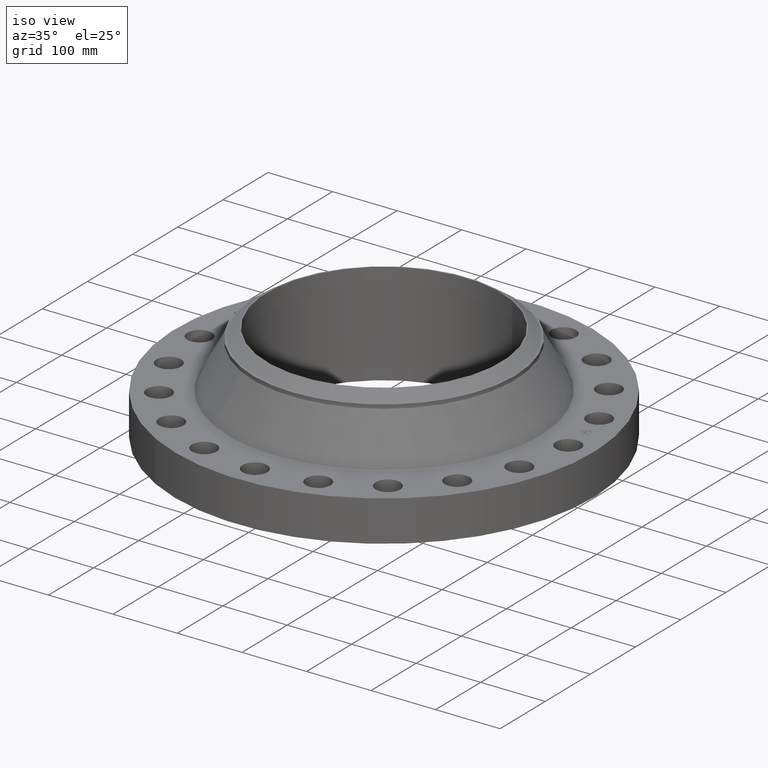
[diagram: clean part render]
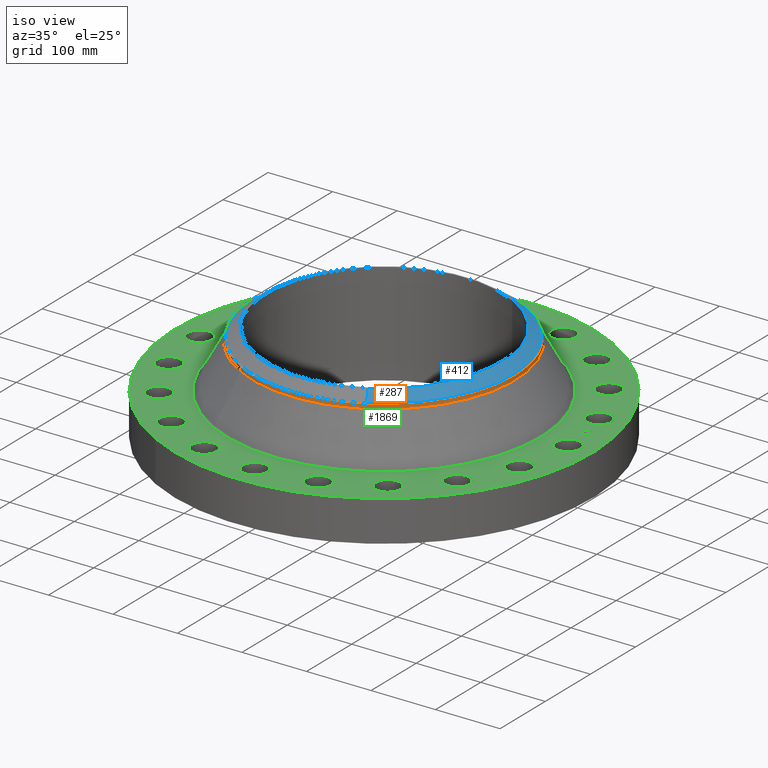
[diagram: same view with three faces highlighted in distinct colors, each labeled with its STEP entity id]
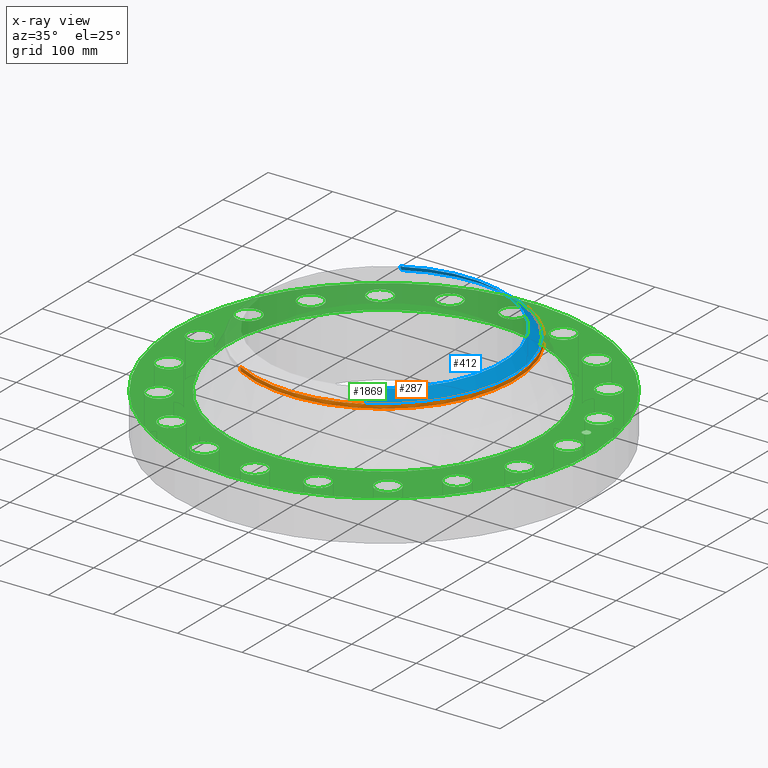
[diagram: x-ray of the same camera — body ghosted, the three highlighted faces saturated]
A machine part, iso view with three faces highlighted in distinct colors.
The next image is the same camera in x-ray (body ghosted, the three faces saturated) — at least one of them is partly hidden behind the body in this view.
Their STEP definitions:

[orange] entity #287 — the highlighted cylindrical surface (partial cylindrical patch) has radius 203.2 mm, axis along (0, 0, -1).
#220=AXIS2_PLACEMENT_3D('Circle Axis2P3D',#218,#219,$) ;
#252=AXIS2_PLACEMENT_3D('Cylinder Axis2P3D',#249,#250,#251) ;
#270=AXIS2_PLACEMENT_3D('Circle Axis2P3D',#268,#269,$) ;
#277=AXIS2_PLACEMENT_3D('Circle Axis2P3D',#275,#276,$) ;
#215=CARTESIAN_POINT('Vertex',(3.83540430885,7.02066049515,5.23329238413)) ;
#218=CARTESIAN_POINT('Axis2P3D Location',(0.,0.,5.23329238413)) ;
#222=CARTESIAN_POINT('Vertex',(-3.83540430885,-7.02066049515,5.23329238413)) ;
#249=CARTESIAN_POINT('Axis2P3D Location',(0.,0.,2.87500000001)) ;
#254=CARTESIAN_POINT('Line Origine',(-3.83540430885,-7.02066049515,5.35140262035)) ;
#258=CARTESIAN_POINT('Vertex',(-3.83540430885,-7.02066049515,5.46951285657)) ;
#261=CARTESIAN_POINT('Line Origine',(3.83540430885,7.02066049515,5.35140262035)) ;
#265=CARTESIAN_POINT('Vertex',(3.83540430885,7.02066049515,5.46951285657)) ;
#268=CARTESIAN_POINT('Axis2P3D Location',(0.,0.,5.46951285657)) ;
#272=CARTESIAN_POINT('Vertex',(3.83540430885,-7.02066049515,5.46951285657)) ;
#275=CARTESIAN_POINT('Axis2P3D Location',(0.,0.,5.46951285657)) ;
#219=DIRECTION('Axis2P3D Direction',(0.,0.,-0.0393700787402)) ;
#250=DIRECTION('Axis2P3D Direction',(0.,0.,-0.0393700787402)) ;
#251=DIRECTION('Axis2P3D XDirection',(-0.0188750212049,-0.0345504945626,0.)) ;
#255=DIRECTION('Vector Direction',(0.,0.,-0.0393700787402)) ;
#262=DIRECTION('Vector Direction',(0.,0.,-0.0393700787402)) ;
#269=DIRECTION('Axis2P3D Direction',(0.,0.,-0.0393700787402)) ;
#276=DIRECTION('Axis2P3D Direction',(0.,0.,-0.0393700787402)) ;
#256=VECTOR('Line Direction',#255,0.0393700787402) ;
#263=VECTOR('Line Direction',#262,0.0393700787402) ;
#281=ORIENTED_EDGE('',*,*,#260,.F.) ;
#282=ORIENTED_EDGE('',*,*,#224,.F.) ;
#283=ORIENTED_EDGE('',*,*,#267,.T.) ;
#284=ORIENTED_EDGE('',*,*,#274,.F.) ;
#285=ORIENTED_EDGE('',*,*,#279,.T.) ;
#287=ADVANCED_FACE('PartBody',(#286),#253,.T.) ;
#221=CIRCLE('generated circle',#220,8.00000000003) ;
#271=CIRCLE('generated circle',#270,8.00000000003) ;
#278=CIRCLE('generated circle',#277,8.00000000003) ;
#253=CYLINDRICAL_SURFACE('generated cylinder',#252,8.00000000003) ;
#224=EDGE_CURVE('',#216,#223,#221,.T.) ;
#260=EDGE_CURVE('',#223,#259,#257,.F.) ;
#267=EDGE_CURVE('',#216,#266,#264,.F.) ;
#274=EDGE_CURVE('',#273,#266,#271,.F.) ;
#279=EDGE_CURVE('',#273,#259,#278,.T.) ;
#280=EDGE_LOOP('',(#281,#282,#283,#284,#285)) ;
#286=FACE_OUTER_BOUND('',#280,.T.) ;
#257=LINE('Line',#254,#256) ;
#264=LINE('Line',#261,#263) ;
#216=VERTEX_POINT('',#215) ;
#223=VERTEX_POINT('',#222) ;
#259=VERTEX_POINT('',#258) ;
#266=VERTEX_POINT('',#265) ;
#273=VERTEX_POINT('',#272) ;

[blue] entity #412 — the highlighted conical surface has half-angle 52.5 deg.
#347=AXIS2_PLACEMENT_3D('Circle Axis2P3D',#345,#346,$) ;
#385=AXIS2_PLACEMENT_3D('Cone Axis2P3D',#382,#383,#384) ;
#396=AXIS2_PLACEMENT_3D('Circle Axis2P3D',#394,#395,$) ;
#345=CARTESIAN_POINT('Axis2P3D Location',(0.,0.,6.00000000002)) ;
#349=CARTESIAN_POINT('Vertex',(3.46851919668,-6.34908180204,6.00000000002)) ;
#351=CARTESIAN_POINT('Vertex',(-3.46851919668,6.34908180204,6.00000000002)) ;
#382=CARTESIAN_POINT('Axis2P3D Location',(0.,0.,6.00000000002)) ;
#387=CARTESIAN_POINT('Line Origine',(3.62346049923,-6.63269995394,5.75201437259)) ;
#391=CARTESIAN_POINT('Vertex',(3.77840180178,-6.91631810585,5.50402874515)) ;
#394=CARTESIAN_POINT('Axis2P3D Location',(0.,0.,5.50402874515)) ;
#398=CARTESIAN_POINT('Vertex',(-3.77840180178,6.91631810585,5.50402874515)) ;
#401=CARTESIAN_POINT('Line Origine',(-3.62346049923,6.63269995394,5.75201437259)) ;
#346=DIRECTION('Axis2P3D Direction',(0.,0.,-0.0393700787402)) ;
#383=DIRECTION('Axis2P3D Direction',(-0.,-0.,-0.0393700787402)) ;
#384=DIRECTION('Axis2P3D XDirection',(0.0188750212049,-0.0345504945626,0.)) ;
#388=DIRECTION('Vector Direction',(0.014974561121,-0.02741075027,-0.023966985394)) ;
#395=DIRECTION('Axis2P3D Direction',(0.,0.,-0.0393700787402)) ;
#402=DIRECTION('Vector Direction',(-0.014974561121,0.02741075027,-0.023966985394)) ;
#389=VECTOR('Line Direction',#388,0.0393700787402) ;
#403=VECTOR('Line Direction',#402,0.0393700787402) ;
#407=ORIENTED_EDGE('',*,*,#353,.F.) ;
#408=ORIENTED_EDGE('',*,*,#393,.T.) ;
#409=ORIENTED_EDGE('',*,*,#400,.T.) ;
#410=ORIENTED_EDGE('',*,*,#405,.F.) ;
#412=ADVANCED_FACE('PartBody',(#411),#386,.T.) ;
#348=CIRCLE('generated circle',#347,7.23474015751) ;
#397=CIRCLE('generated circle',#396,7.88110248106) ;
#386=CONICAL_SURFACE('Cone',#385,7.23474015751,0.916297857297) ;
#353=EDGE_CURVE('',#350,#352,#348,.F.) ;
#393=EDGE_CURVE('',#350,#392,#390,.T.) ;
#400=EDGE_CURVE('',#392,#399,#397,.F.) ;
#405=EDGE_CURVE('',#352,#399,#404,.T.) ;
#406=EDGE_LOOP('',(#407,#408,#409,#410)) ;
#411=FACE_OUTER_BOUND('',#406,.T.) ;
#390=LINE('Line',#387,#389) ;
#404=LINE('Line',#401,#403) ;
#350=VERTEX_POINT('',#349) ;
#352=VERTEX_POINT('',#351) ;
#392=VERTEX_POINT('',#391) ;
#399=VERTEX_POINT('',#398) ;

[green] entity #1869 — the highlighted planar face has unit normal (0, 0, -1).
#65=AXIS2_PLACEMENT_3D('Circle Axis2P3D',#63,#64,$) ;
#82=AXIS2_PLACEMENT_3D('Circle Axis2P3D',#80,#81,$) ;
#115=AXIS2_PLACEMENT_3D('Circle Axis2P3D',#113,#114,$) ;
#139=AXIS2_PLACEMENT_3D('Circle Axis2P3D',#137,#138,$) ;
#156=AXIS2_PLACEMENT_3D('Circle Axis2P3D',#154,#155,$) ;
#191=AXIS2_PLACEMENT_3D('Circle Axis2P3D',#189,#190,$) ;
#962=AXIS2_PLACEMENT_3D('Circle Axis2P3D',#960,#961,$) ;
#974=AXIS2_PLACEMENT_3D('Circle Axis2P3D',#972,#973,$) ;
#1005=AXIS2_PLACEMENT_3D('Circle Axis2P3D',#1003,#1004,$) ;
#1017=AXIS2_PLACEMENT_3D('Circle Axis2P3D',#1015,#1016,$) ;
#1048=AXIS2_PLACEMENT_3D('Circle Axis2P3D',#1046,#1047,$) ;
#1060=AXIS2_PLACEMENT_3D('Circle Axis2P3D',#1058,#1059,$) ;
#1091=AXIS2_PLACEMENT_3D('Circle Axis2P3D',#1089,#1090,$) ;
#1103=AXIS2_PLACEMENT_3D('Circle Axis2P3D',#1101,#1102,$) ;
#1134=AXIS2_PLACEMENT_3D('Circle Axis2P3D',#1132,#1133,$) ;
#1146=AXIS2_PLACEMENT_3D('Circle Axis2P3D',#1144,#1145,$) ;
#1177=AXIS2_PLACEMENT_3D('Circle Axis2P3D',#1175,#1176,$) ;
#1189=AXIS2_PLACEMENT_3D('Circle Axis2P3D',#1187,#1188,$) ;
#1220=AXIS2_PLACEMENT_3D('Circle Axis2P3D',#1218,#1219,$) ;
#1232=AXIS2_PLACEMENT_3D('Circle Axis2P3D',#1230,#1231,$) ;
#1263=AXIS2_PLACEMENT_3D('Circle Axis2P3D',#1261,#1262,$) ;
#1275=AXIS2_PLACEMENT_3D('Circle Axis2P3D',#1273,#1274,$) ;
#1306=AXIS2_PLACEMENT_3D('Circle Axis2P3D',#1304,#1305,$) ;
#1318=AXIS2_PLACEMENT_3D('Circle Axis2P3D',#1316,#1317,$) ;
#1349=AXIS2_PLACEMENT_3D('Circle Axis2P3D',#1347,#1348,$) ;
#1361=AXIS2_PLACEMENT_3D('Circle Axis2P3D',#1359,#1360,$) ;
#1392=AXIS2_PLACEMENT_3D('Circle Axis2P3D',#1390,#1391,$) ;
#1404=AXIS2_PLACEMENT_3D('Circle Axis2P3D',#1402,#1403,$) ;
#1435=AXIS2_PLACEMENT_3D('Circle Axis2P3D',#1433,#1434,$) ;
#1447=AXIS2_PLACEMENT_3D('Circle Axis2P3D',#1445,#1446,$) ;
#1478=AXIS2_PLACEMENT_3D('Circle Axis2P3D',#1476,#1477,$) ;
#1490=AXIS2_PLACEMENT_3D('Circle Axis2P3D',#1488,#1489,$) ;
#1521=AXIS2_PLACEMENT_3D('Circle Axis2P3D',#1519,#1520,$) ;
#1533=AXIS2_PLACEMENT_3D('Circle Axis2P3D',#1531,#1532,$) ;
#1564=AXIS2_PLACEMENT_3D('Circle Axis2P3D',#1562,#1563,$) ;
#1576=AXIS2_PLACEMENT_3D('Circle Axis2P3D',#1574,#1575,$) ;
#1607=AXIS2_PLACEMENT_3D('Circle Axis2P3D',#1605,#1606,$) ;
#1619=AXIS2_PLACEMENT_3D('Circle Axis2P3D',#1617,#1618,$) ;
#1650=AXIS2_PLACEMENT_3D('Circle Axis2P3D',#1648,#1649,$) ;
#1662=AXIS2_PLACEMENT_3D('Circle Axis2P3D',#1660,#1661,$) ;
#1693=AXIS2_PLACEMENT_3D('Circle Axis2P3D',#1691,#1692,$) ;
#1705=AXIS2_PLACEMENT_3D('Circle Axis2P3D',#1703,#1704,$) ;
#1736=AXIS2_PLACEMENT_3D('Circle Axis2P3D',#1734,#1735,$) ;
#1748=AXIS2_PLACEMENT_3D('Circle Axis2P3D',#1746,#1747,$) ;
#1761=AXIS2_PLACEMENT_3D('Plane Axis2P3D',#1758,#1759,#1760) ;
#1853=AXIS2_PLACEMENT_3D('Circle Axis2P3D',#1851,#1852,$) ;
#1862=AXIS2_PLACEMENT_3D('Circle Axis2P3D',#1860,#1861,$) ;
#46=CARTESIAN_POINT('Vertex',(10.5918130786,0.359569153955,2.50000000001)) ;
#60=CARTESIAN_POINT('Vertex',(11.9081869215,-0.359569153955,2.50000000001)) ;
#63=CARTESIAN_POINT('Axis2P3D Location',(11.25,0.,2.50000000001)) ;
#80=CARTESIAN_POINT('Axis2P3D Location',(11.25,0.,2.50000000001)) ;
#110=CARTESIAN_POINT('Vertex',(-6.11267561723,-11.1891776641,2.50000000001)) ;
#113=CARTESIAN_POINT('Axis2P3D Location',(0.,0.,2.50000000001)) ;
#117=CARTESIAN_POINT('Vertex',(6.11267561723,11.1891776641,2.50000000001)) ;
#137=CARTESIAN_POINT('Axis2P3D Location',(0.,0.,2.50000000001)) ;
#154=CARTESIAN_POINT('Axis2P3D Location',(0.,0.,2.50000000001)) ;
#158=CARTESIAN_POINT('Vertex',(4.58859521144,8.39936719445,2.50000000001)) ;
#160=CARTESIAN_POINT('Vertex',(-4.58859521144,-8.39936719445,2.50000000001)) ;
#189=CARTESIAN_POINT('Axis2P3D Location',(0.,0.,2.50000000001)) ;
#950=CARTESIAN_POINT('Vertex',(-10.184525827,2.93107965561,2.50000000001)) ;
#957=CARTESIAN_POINT('Vertex',(-11.2142457897,4.02180271785,2.50000000001)) ;
#960=CARTESIAN_POINT('Axis2P3D Location',(-10.6993858084,3.47644118673,2.50000000001)) ;
#972=CARTESIAN_POINT('Axis2P3D Location',(-10.6993858084,3.47644118673,2.50000000001)) ;
#993=CARTESIAN_POINT('Vertex',(8.78030622772,-5.93481396645,2.50000000001)) ;
#1000=CARTESIAN_POINT('Vertex',(9.42257614579,-7.29035421018,2.50000000001)) ;
#1003=CARTESIAN_POINT('Axis2P3D Location',(9.10144118675,-6.61258408832,2.50000000001)) ;
#1015=CARTESIAN_POINT('Axis2P3D Location',(9.10144118675,-6.61258408832,2.50000000001)) ;
#1036=CARTESIAN_POINT('Vertex',(-8.78030622772,5.93481396645,2.50000000001)) ;
#1043=CARTESIAN_POINT('Vertex',(-9.42257614579,7.29035421018,2.50000000001)) ;
#1046=CARTESIAN_POINT('Axis2P3D Location',(-9.10144118675,6.61258408832,2.50000000001)) ;
#1058=CARTESIAN_POINT('Axis2P3D Location',(-9.10144118675,6.61258408832,2.50000000001)) ;
#1079=CARTESIAN_POINT('Vertex',(6.51660907886,-8.35760733598,2.50000000001)) ;
#1086=CARTESIAN_POINT('Vertex',(6.70855909778,-9.84527503753,2.50000000001)) ;
#1089=CARTESIAN_POINT('Axis2P3D Location',(6.61258408832,-9.10144118675,2.50000000001)) ;
#1101=CARTESIAN_POINT('Axis2P3D Location',(6.61258408832,-9.10144118675,2.50000000001)) ;
#1122=CARTESIAN_POINT('Vertex',(-6.51660907886,8.35760733598,2.50000000001)) ;
#1129=CARTESIAN_POINT('Vertex',(-6.70855909778,9.84527503753,2.50000000001)) ;
#1132=CARTESIAN_POINT('Axis2P3D Location',(-6.61258408832,9.10144118675,2.50000000001)) ;
#1144=CARTESIAN_POINT('Axis2P3D Location',(-6.61258408832,9.10144118675,2.50000000001)) ;
#1165=CARTESIAN_POINT('Vertex',(3.61502082947,-9.96229986858,2.50000000001)) ;
#1172=CARTESIAN_POINT('Vertex',(3.337861544,-11.4364717481,2.50000000001)) ;
#1175=CARTESIAN_POINT('Axis2P3D Location',(3.47644118673,-10.6993858084,2.50000000001)) ;
#1187=CARTESIAN_POINT('Axis2P3D Location',(3.47644118673,-10.6993858084,2.50000000001)) ;
#1208=CARTESIAN_POINT('Vertex',(-3.61502082947,9.96229986858,2.50000000001)) ;
#1215=CARTESIAN_POINT('Vertex',(-3.337861544,11.4364717481,2.50000000001)) ;
#1218=CARTESIAN_POINT('Axis2P3D Location',(-3.47644118673,10.6993858084,2.50000000001)) ;
#1230=CARTESIAN_POINT('Axis2P3D Location',(-3.47644118673,10.6993858084,2.50000000001)) ;
#1251=CARTESIAN_POINT('Vertex',(0.359569153955,-10.5918130786,2.50000000001)) ;
#1258=CARTESIAN_POINT('Vertex',(-0.359569153955,-11.9081869215,2.50000000001)) ;
#1261=CARTESIAN_POINT('Axis2P3D Location',(9.4893575353E-016,-11.25,2.50000000001)) ;
#1273=CARTESIAN_POINT('Axis2P3D Location',(9.4893575353E-016,-11.25,2.50000000001)) ;
#1294=CARTESIAN_POINT('Vertex',(-0.359569153955,10.5918130786,2.50000000001)) ;
#1301=CARTESIAN_POINT('Vertex',(0.359569153955,11.9081869215,2.50000000001)) ;
#1304=CARTESIAN_POINT('Axis2P3D Location',(-9.82066881883E-015,11.25,2.50000000001)) ;
#1316=CARTESIAN_POINT('Axis2P3D Location',(-9.82066881883E-015,11.25,2.50000000001)) ;
#1337=CARTESIAN_POINT('Vertex',(-2.93107965561,-10.184525827,2.50000000001)) ;
#1344=CARTESIAN_POINT('Vertex',(-4.02180271785,-11.2142457897,2.50000000001)) ;
#1347=CARTESIAN_POINT('Axis2P3D Location',(-3.47644118673,-10.6993858084,2.50000000001)) ;
#1359=CARTESIAN_POINT('Axis2P3D Location',(-3.47644118673,-10.6993858084,2.50000000001)) ;
#1380=CARTESIAN_POINT('Vertex',(2.93107965561,10.184525827,2.50000000001)) ;
#1387=CARTESIAN_POINT('Vertex',(4.02180271785,11.2142457897,2.50000000001)) ;
#1390=CARTESIAN_POINT('Axis2P3D Location',(3.47644118673,10.6993858084,2.50000000001)) ;
#1402=CARTESIAN_POINT('Axis2P3D Location',(3.47644118673,10.6993858084,2.50000000001)) ;
#1423=CARTESIAN_POINT('Vertex',(-5.93481396645,-8.78030622772,2.50000000001)) ;
#1430=CARTESIAN_POINT('Vertex',(-7.29035421018,-9.42257614579,2.50000000001)) ;
#1433=CARTESIAN_POINT('Axis2P3D Location',(-6.61258408832,-9.10144118675,2.50000000001)) ;
#1445=CARTESIAN_POINT('Axis2P3D Location',(-6.61258408832,-9.10144118675,2.50000000001)) ;
#1466=CARTESIAN_POINT('Vertex',(5.93481396645,8.78030622772,2.50000000001)) ;
#1473=CARTESIAN_POINT('Vertex',(7.29035421018,9.42257614579,2.50000000001)) ;
#1476=CARTESIAN_POINT('Axis2P3D Location',(6.61258408832,9.10144118675,2.50000000001)) ;
#1488=CARTESIAN_POINT('Axis2P3D Location',(6.61258408832,9.10144118675,2.50000000001)) ;
#1509=CARTESIAN_POINT('Vertex',(-8.35760733598,-6.51660907886,2.50000000001)) ;
#1516=CARTESIAN_POINT('Vertex',(-9.84527503753,-6.70855909778,2.50000000001)) ;
#1519=CARTESIAN_POINT('Axis2P3D Location',(-9.10144118675,-6.61258408832,2.50000000001)) ;
#1531=CARTESIAN_POINT('Axis2P3D Location',(-9.10144118675,-6.61258408832,2.50000000001)) ;
#1552=CARTESIAN_POINT('Vertex',(8.35760733598,6.51660907886,2.50000000001)) ;
#1559=CARTESIAN_POINT('Vertex',(9.84527503753,6.70855909778,2.50000000001)) ;
#1562=CARTESIAN_POINT('Axis2P3D Location',(9.10144118675,6.61258408832,2.50000000001)) ;
#1574=CARTESIAN_POINT('Axis2P3D Location',(9.10144118675,6.61258408832,2.50000000001)) ;
#1595=CARTESIAN_POINT('Vertex',(-9.96229986858,-3.61502082947,2.50000000001)) ;
#1602=CARTESIAN_POINT('Vertex',(-11.4364717481,-3.337861544,2.50000000001)) ;
#1605=CARTESIAN_POINT('Axis2P3D Location',(-10.6993858084,-3.47644118673,2.50000000001)) ;
#1617=CARTESIAN_POINT('Axis2P3D Location',(-10.6993858084,-3.47644118673,2.50000000001)) ;
#1638=CARTESIAN_POINT('Vertex',(9.96229986858,3.61502082947,2.50000000001)) ;
#1645=CARTESIAN_POINT('Vertex',(11.4364717481,3.337861544,2.50000000001)) ;
#1648=CARTESIAN_POINT('Axis2P3D Location',(10.6993858084,3.47644118673,2.50000000001)) ;
#1660=CARTESIAN_POINT('Axis2P3D Location',(10.6993858084,3.47644118673,2.50000000001)) ;
#1681=CARTESIAN_POINT('Vertex',(-10.5918130786,-0.359569153955,2.50000000001)) ;
#1688=CARTESIAN_POINT('Vertex',(-11.9081869215,0.359569153955,2.50000000001)) ;
#1691=CARTESIAN_POINT('Axis2P3D Location',(-11.25,-6.37373125988E-015,2.50000000001)) ;
#1703=CARTESIAN_POINT('Axis2P3D Location',(-11.25,-6.37373125988E-015,2.50000000001)) ;
#1724=CARTESIAN_POINT('Vertex',(10.184525827,-2.93107965561,2.50000000001)) ;
#1731=CARTESIAN_POINT('Vertex',(11.2142457897,-4.02180271785,2.50000000001)) ;
#1734=CARTESIAN_POINT('Axis2P3D Location',(10.6993858084,-3.47644118673,2.50000000001)) ;
#1746=CARTESIAN_POINT('Axis2P3D Location',(10.6993858084,-3.47644118673,2.50000000001)) ;
#1758=CARTESIAN_POINT('Axis2P3D Location',(0.,12.7500000001,2.50000000001)) ;
#1851=CARTESIAN_POINT('Axis2P3D Location',(11.1114938317,1.75988773171,2.50000000001)) ;
#1855=CARTESIAN_POINT('Vertex',(11.0727763016,2.00434059601,2.50000000001)) ;
#1857=CARTESIAN_POINT('Vertex',(11.1502113618,1.51543486741,2.50000000001)) ;
#1860=CARTESIAN_POINT('Axis2P3D Location',(11.1114938317,1.75988773171,2.50000000001)) ;
#64=DIRECTION('Axis2P3D Direction',(0.,-0.,-0.0393700787402)) ;
#81=DIRECTION('Axis2P3D Direction',(0.,-0.,-0.0393700787402)) ;
#114=DIRECTION('Axis2P3D Direction',(0.,0.,-0.0393700787402)) ;
#138=DIRECTION('Axis2P3D Direction',(0.,0.,-0.0393700787402)) ;
#155=DIRECTION('Axis2P3D Direction',(0.,0.,-0.0393700787402)) ;
#190=DIRECTION('Axis2P3D Direction',(0.,0.,-0.0393700787402)) ;
#961=DIRECTION('Axis2P3D Direction',(0.,0.,-0.0393700787402)) ;
#973=DIRECTION('Axis2P3D Direction',(0.,0.,-0.0393700787402)) ;
#1004=DIRECTION('Axis2P3D Direction',(0.,-0.,-0.0393700787402)) ;
#1016=DIRECTION('Axis2P3D Direction',(0.,-0.,-0.0393700787402)) ;
#1047=DIRECTION('Axis2P3D Direction',(0.,0.,-0.0393700787402)) ;
#1059=DIRECTION('Axis2P3D Direction',(0.,0.,-0.0393700787402)) ;
#1090=DIRECTION('Axis2P3D Direction',(0.,-0.,-0.0393700787402)) ;
#1102=DIRECTION('Axis2P3D Direction',(0.,-0.,-0.0393700787402)) ;
#1133=DIRECTION('Axis2P3D Direction',(0.,0.,-0.0393700787402)) ;
#1145=DIRECTION('Axis2P3D Direction',(0.,0.,-0.0393700787402)) ;
#1176=DIRECTION('Axis2P3D Direction',(0.,-0.,-0.0393700787402)) ;
#1188=DIRECTION('Axis2P3D Direction',(0.,-0.,-0.0393700787402)) ;
#1219=DIRECTION('Axis2P3D Direction',(0.,0.,-0.0393700787402)) ;
#1231=DIRECTION('Axis2P3D Direction',(0.,0.,-0.0393700787402)) ;
#1262=DIRECTION('Axis2P3D Direction',(0.,-0.,-0.0393700787402)) ;
#1274=DIRECTION('Axis2P3D Direction',(0.,-0.,-0.0393700787402)) ;
#1305=DIRECTION('Axis2P3D Direction',(0.,0.,-0.0393700787402)) ;
#1317=DIRECTION('Axis2P3D Direction',(0.,0.,-0.0393700787402)) ;
#1348=DIRECTION('Axis2P3D Direction',(-0.,0.,-0.0393700787402)) ;
#1360=DIRECTION('Axis2P3D Direction',(-0.,0.,-0.0393700787402)) ;
#1391=DIRECTION('Axis2P3D Direction',(0.,0.,-0.0393700787402)) ;
#1403=DIRECTION('Axis2P3D Direction',(0.,0.,-0.0393700787402)) ;
#1434=DIRECTION('Axis2P3D Direction',(-0.,0.,-0.0393700787402)) ;
#1446=DIRECTION('Axis2P3D Direction',(-0.,0.,-0.0393700787402)) ;
#1477=DIRECTION('Axis2P3D Direction',(0.,0.,-0.0393700787402)) ;
#1489=DIRECTION('Axis2P3D Direction',(0.,0.,-0.0393700787402)) ;
#1520=DIRECTION('Axis2P3D Direction',(-0.,0.,-0.0393700787402)) ;
#1532=DIRECTION('Axis2P3D Direction',(-0.,0.,-0.0393700787402)) ;
#1563=DIRECTION('Axis2P3D Direction',(0.,0.,-0.0393700787402)) ;
#1575=DIRECTION('Axis2P3D Direction',(0.,0.,-0.0393700787402)) ;
#1606=DIRECTION('Axis2P3D Direction',(-0.,0.,-0.0393700787402)) ;
#1618=DIRECTION('Axis2P3D Direction',(-0.,0.,-0.0393700787402)) ;
#1649=DIRECTION('Axis2P3D Direction',(0.,0.,-0.0393700787402)) ;
#1661=DIRECTION('Axis2P3D Direction',(0.,0.,-0.0393700787402)) ;
#1692=DIRECTION('Axis2P3D Direction',(-0.,0.,-0.0393700787402)) ;
#1704=DIRECTION('Axis2P3D Direction',(-0.,0.,-0.0393700787402)) ;
#1735=DIRECTION('Axis2P3D Direction',(0.,-0.,-0.0393700787402)) ;
#1747=DIRECTION('Axis2P3D Direction',(0.,-0.,-0.0393700787402)) ;
#1759=DIRECTION('Axis2P3D Direction',(0.,0.,-0.0393700787402)) ;
#1760=DIRECTION('Axis2P3D XDirection',(0.0393700787402,0.,0.)) ;
#1852=DIRECTION('Axis2P3D Direction',(0.,0.,-0.0393700787402)) ;
#1861=DIRECTION('Axis2P3D Direction',(0.,0.,-0.0393700787402)) ;
#1764=ORIENTED_EDGE('',*,*,#141,.F.) ;
#1765=ORIENTED_EDGE('',*,*,#119,.F.) ;
#1768=ORIENTED_EDGE('',*,*,#67,.T.) ;
#1769=ORIENTED_EDGE('',*,*,#84,.T.) ;
#1772=ORIENTED_EDGE('',*,*,#193,.T.) ;
#1773=ORIENTED_EDGE('',*,*,#162,.T.) ;
#1776=ORIENTED_EDGE('',*,*,#1750,.T.) ;
#1777=ORIENTED_EDGE('',*,*,#1738,.T.) ;
#1780=ORIENTED_EDGE('',*,*,#1019,.T.) ;
#1781=ORIENTED_EDGE('',*,*,#1007,.T.) ;
#1784=ORIENTED_EDGE('',*,*,#1105,.T.) ;
#1785=ORIENTED_EDGE('',*,*,#1093,.T.) ;
#1788=ORIENTED_EDGE('',*,*,#1191,.T.) ;
#1789=ORIENTED_EDGE('',*,*,#1179,.T.) ;
#1792=ORIENTED_EDGE('',*,*,#1277,.T.) ;
#1793=ORIENTED_EDGE('',*,*,#1265,.T.) ;
#1796=ORIENTED_EDGE('',*,*,#1363,.T.) ;
#1797=ORIENTED_EDGE('',*,*,#1351,.T.) ;
#1800=ORIENTED_EDGE('',*,*,#1449,.T.) ;
#1801=ORIENTED_EDGE('',*,*,#1437,.T.) ;
#1804=ORIENTED_EDGE('',*,*,#1535,.T.) ;
#1805=ORIENTED_EDGE('',*,*,#1523,.T.) ;
#1808=ORIENTED_EDGE('',*,*,#1621,.T.) ;
#1809=ORIENTED_EDGE('',*,*,#1609,.T.) ;
#1812=ORIENTED_EDGE('',*,*,#1707,.T.) ;
#1813=ORIENTED_EDGE('',*,*,#1695,.T.) ;
#1816=ORIENTED_EDGE('',*,*,#976,.T.) ;
#1817=ORIENTED_EDGE('',*,*,#964,.T.) ;
#1820=ORIENTED_EDGE('',*,*,#1062,.T.) ;
#1821=ORIENTED_EDGE('',*,*,#1050,.T.) ;
#1824=ORIENTED_EDGE('',*,*,#1148,.T.) ;
#1825=ORIENTED_EDGE('',*,*,#1136,.T.) ;
#1828=ORIENTED_EDGE('',*,*,#1234,.T.) ;
#1829=ORIENTED_EDGE('',*,*,#1222,.T.) ;
#1832=ORIENTED_EDGE('',*,*,#1320,.T.) ;
#1833=ORIENTED_EDGE('',*,*,#1308,.T.) ;
#1836=ORIENTED_EDGE('',*,*,#1406,.T.) ;
#1837=ORIENTED_EDGE('',*,*,#1394,.T.) ;
#1840=ORIENTED_EDGE('',*,*,#1492,.T.) ;
#1841=ORIENTED_EDGE('',*,*,#1480,.T.) ;
#1844=ORIENTED_EDGE('',*,*,#1578,.T.) ;
#1845=ORIENTED_EDGE('',*,*,#1566,.T.) ;
#1848=ORIENTED_EDGE('',*,*,#1664,.T.) ;
#1849=ORIENTED_EDGE('',*,*,#1652,.T.) ;
#1866=ORIENTED_EDGE('',*,*,#1859,.T.) ;
#1867=ORIENTED_EDGE('',*,*,#1864,.T.) ;
#1770=FACE_BOUND('',#1767,.T.) ;
#1774=FACE_BOUND('',#1771,.T.) ;
#1778=FACE_BOUND('',#1775,.T.) ;
#1782=FACE_BOUND('',#1779,.T.) ;
#1786=FACE_BOUND('',#1783,.T.) ;
#1790=FACE_BOUND('',#1787,.T.) ;
#1794=FACE_BOUND('',#1791,.T.) ;
#1798=FACE_BOUND('',#1795,.T.) ;
#1802=FACE_BOUND('',#1799,.T.) ;
#1806=FACE_BOUND('',#1803,.T.) ;
#1810=FACE_BOUND('',#1807,.T.) ;
#1814=FACE_BOUND('',#1811,.T.) ;
#1818=FACE_BOUND('',#1815,.T.) ;
#1822=FACE_BOUND('',#1819,.T.) ;
#1826=FACE_BOUND('',#1823,.T.) ;
#1830=FACE_BOUND('',#1827,.T.) ;
#1834=FACE_BOUND('',#1831,.T.) ;
#1838=FACE_BOUND('',#1835,.T.) ;
#1842=FACE_BOUND('',#1839,.T.) ;
#1846=FACE_BOUND('',#1843,.T.) ;
#1850=FACE_BOUND('',#1847,.T.) ;
#1868=FACE_BOUND('',#1865,.T.) ;
#1869=ADVANCED_FACE('PartBody',(#1766,#1770,#1774,#1778,#1782,#1786,#1790,#1794,#1798,#1802,#1806,#1810,#1814,#1818,#1822,#1826,#1830,#1834,#1838,#1842,#1846,#1850,#1868),#1762,.F.) ;
#66=CIRCLE('generated circle',#65,0.750000000003) ;
#83=CIRCLE('generated circle',#82,0.750000000003) ;
#116=CIRCLE('generated circle',#115,12.7500000001) ;
#140=CIRCLE('generated circle',#139,12.7500000001) ;
#157=CIRCLE('generated circle',#156,9.57102791145) ;
#192=CIRCLE('generated circle',#191,9.57102791145) ;
#963=CIRCLE('generated circle',#962,0.750000000003) ;
#975=CIRCLE('generated circle',#974,0.750000000003) ;
#1006=CIRCLE('generated circle',#1005,0.750000000003) ;
#1018=CIRCLE('generated circle',#1017,0.750000000003) ;
#1049=CIRCLE('generated circle',#1048,0.750000000003) ;
#1061=CIRCLE('generated circle',#1060,0.750000000003) ;
#1092=CIRCLE('generated circle',#1091,0.750000000003) ;
#1104=CIRCLE('generated circle',#1103,0.750000000003) ;
#1135=CIRCLE('generated circle',#1134,0.750000000003) ;
#1147=CIRCLE('generated circle',#1146,0.750000000003) ;
#1178=CIRCLE('generated circle',#1177,0.750000000003) ;
#1190=CIRCLE('generated circle',#1189,0.750000000003) ;
#1221=CIRCLE('generated circle',#1220,0.750000000003) ;
#1233=CIRCLE('generated circle',#1232,0.750000000003) ;
#1264=CIRCLE('generated circle',#1263,0.750000000003) ;
#1276=CIRCLE('generated circle',#1275,0.750000000003) ;
#1307=CIRCLE('generated circle',#1306,0.750000000003) ;
#1319=CIRCLE('generated circle',#1318,0.750000000003) ;
#1350=CIRCLE('generated circle',#1349,0.750000000003) ;
#1362=CIRCLE('generated circle',#1361,0.750000000003) ;
#1393=CIRCLE('generated circle',#1392,0.750000000003) ;
#1405=CIRCLE('generated circle',#1404,0.750000000003) ;
#1436=CIRCLE('generated circle',#1435,0.750000000003) ;
#1448=CIRCLE('generated circle',#1447,0.750000000003) ;
#1479=CIRCLE('generated circle',#1478,0.750000000003) ;
#1491=CIRCLE('generated circle',#1490,0.750000000003) ;
#1522=CIRCLE('generated circle',#1521,0.750000000003) ;
#1534=CIRCLE('generated circle',#1533,0.750000000003) ;
#1565=CIRCLE('generated circle',#1564,0.750000000003) ;
#1577=CIRCLE('generated circle',#1576,0.750000000003) ;
#1608=CIRCLE('generated circle',#1607,0.750000000003) ;
#1620=CIRCLE('generated circle',#1619,0.750000000003) ;
#1651=CIRCLE('generated circle',#1650,0.750000000003) ;
#1663=CIRCLE('generated circle',#1662,0.750000000003) ;
#1694=CIRCLE('generated circle',#1693,0.750000000003) ;
#1706=CIRCLE('generated circle',#1705,0.750000000003) ;
#1737=CIRCLE('generated circle',#1736,0.750000000003) ;
#1749=CIRCLE('generated circle',#1748,0.750000000003) ;
#1854=CIRCLE('generated circle',#1853,0.247500000001) ;
#1863=CIRCLE('generated circle',#1862,0.247500000001) ;
#67=EDGE_CURVE('',#47,#61,#66,.T.) ;
#84=EDGE_CURVE('',#61,#47,#83,.T.) ;
#119=EDGE_CURVE('',#111,#118,#116,.T.) ;
#141=EDGE_CURVE('',#118,#111,#140,.T.) ;
#162=EDGE_CURVE('',#159,#161,#157,.T.) ;
#193=EDGE_CURVE('',#161,#159,#192,.T.) ;
#964=EDGE_CURVE('',#951,#958,#963,.T.) ;
#976=EDGE_CURVE('',#958,#951,#975,.T.) ;
#1007=EDGE_CURVE('',#994,#1001,#1006,.T.) ;
#1019=EDGE_CURVE('',#1001,#994,#1018,.T.) ;
#1050=EDGE_CURVE('',#1037,#1044,#1049,.T.) ;
#1062=EDGE_CURVE('',#1044,#1037,#1061,.T.) ;
#1093=EDGE_CURVE('',#1080,#1087,#1092,.T.) ;
#1105=EDGE_CURVE('',#1087,#1080,#1104,.T.) ;
#1136=EDGE_CURVE('',#1123,#1130,#1135,.T.) ;
#1148=EDGE_CURVE('',#1130,#1123,#1147,.T.) ;
#1179=EDGE_CURVE('',#1166,#1173,#1178,.T.) ;
#1191=EDGE_CURVE('',#1173,#1166,#1190,.T.) ;
#1222=EDGE_CURVE('',#1209,#1216,#1221,.T.) ;
#1234=EDGE_CURVE('',#1216,#1209,#1233,.T.) ;
#1265=EDGE_CURVE('',#1252,#1259,#1264,.T.) ;
#1277=EDGE_CURVE('',#1259,#1252,#1276,.T.) ;
#1308=EDGE_CURVE('',#1295,#1302,#1307,.T.) ;
#1320=EDGE_CURVE('',#1302,#1295,#1319,.T.) ;
#1351=EDGE_CURVE('',#1338,#1345,#1350,.T.) ;
#1363=EDGE_CURVE('',#1345,#1338,#1362,.T.) ;
#1394=EDGE_CURVE('',#1381,#1388,#1393,.T.) ;
#1406=EDGE_CURVE('',#1388,#1381,#1405,.T.) ;
#1437=EDGE_CURVE('',#1424,#1431,#1436,.T.) ;
#1449=EDGE_CURVE('',#1431,#1424,#1448,.T.) ;
#1480=EDGE_CURVE('',#1467,#1474,#1479,.T.) ;
#1492=EDGE_CURVE('',#1474,#1467,#1491,.T.) ;
#1523=EDGE_CURVE('',#1510,#1517,#1522,.T.) ;
#1535=EDGE_CURVE('',#1517,#1510,#1534,.T.) ;
#1566=EDGE_CURVE('',#1553,#1560,#1565,.T.) ;
#1578=EDGE_CURVE('',#1560,#1553,#1577,.T.) ;
#1609=EDGE_CURVE('',#1596,#1603,#1608,.T.) ;
#1621=EDGE_CURVE('',#1603,#1596,#1620,.T.) ;
#1652=EDGE_CURVE('',#1639,#1646,#1651,.T.) ;
#1664=EDGE_CURVE('',#1646,#1639,#1663,.T.) ;
#1695=EDGE_CURVE('',#1682,#1689,#1694,.T.) ;
#1707=EDGE_CURVE('',#1689,#1682,#1706,.T.) ;
#1738=EDGE_CURVE('',#1725,#1732,#1737,.T.) ;
#1750=EDGE_CURVE('',#1732,#1725,#1749,.T.) ;
#1859=EDGE_CURVE('',#1856,#1858,#1854,.T.) ;
#1864=EDGE_CURVE('',#1858,#1856,#1863,.T.) ;
#1763=EDGE_LOOP('',(#1764,#1765)) ;
#1767=EDGE_LOOP('',(#1768,#1769)) ;
#1771=EDGE_LOOP('',(#1772,#1773)) ;
#1775=EDGE_LOOP('',(#1776,#1777)) ;
#1779=EDGE_LOOP('',(#1780,#1781)) ;
#1783=EDGE_LOOP('',(#1784,#1785)) ;
#1787=EDGE_LOOP('',(#1788,#1789)) ;
#1791=EDGE_LOOP('',(#1792,#1793)) ;
#1795=EDGE_LOOP('',(#1796,#1797)) ;
#1799=EDGE_LOOP('',(#1800,#1801)) ;
#1803=EDGE_LOOP('',(#1804,#1805)) ;
#1807=EDGE_LOOP('',(#1808,#1809)) ;
#1811=EDGE_LOOP('',(#1812,#1813)) ;
#1815=EDGE_LOOP('',(#1816,#1817)) ;
#1819=EDGE_LOOP('',(#1820,#1821)) ;
#1823=EDGE_LOOP('',(#1824,#1825)) ;
#1827=EDGE_LOOP('',(#1828,#1829)) ;
#1831=EDGE_LOOP('',(#1832,#1833)) ;
#1835=EDGE_LOOP('',(#1836,#1837)) ;
#1839=EDGE_LOOP('',(#1840,#1841)) ;
#1843=EDGE_LOOP('',(#1844,#1845)) ;
#1847=EDGE_LOOP('',(#1848,#1849)) ;
#1865=EDGE_LOOP('',(#1866,#1867)) ;
#1766=FACE_OUTER_BOUND('',#1763,.T.) ;
#1762=PLANE('',#1761) ;
#47=VERTEX_POINT('',#46) ;
#61=VERTEX_POINT('',#60) ;
#111=VERTEX_POINT('',#110) ;
#118=VERTEX_POINT('',#117) ;
#159=VERTEX_POINT('',#158) ;
#161=VERTEX_POINT('',#160) ;
#951=VERTEX_POINT('',#950) ;
#958=VERTEX_POINT('',#957) ;
#994=VERTEX_POINT('',#993) ;
#1001=VERTEX_POINT('',#1000) ;
#1037=VERTEX_POINT('',#1036) ;
#1044=VERTEX_POINT('',#1043) ;
#1080=VERTEX_POINT('',#1079) ;
#1087=VERTEX_POINT('',#1086) ;
#1123=VERTEX_POINT('',#1122) ;
#1130=VERTEX_POINT('',#1129) ;
#1166=VERTEX_POINT('',#1165) ;
#1173=VERTEX_POINT('',#1172) ;
#1209=VERTEX_POINT('',#1208) ;
#1216=VERTEX_POINT('',#1215) ;
#1252=VERTEX_POINT('',#1251) ;
#1259=VERTEX_POINT('',#1258) ;
#1295=VERTEX_POINT('',#1294) ;
#1302=VERTEX_POINT('',#1301) ;
#1338=VERTEX_POINT('',#1337) ;
#1345=VERTEX_POINT('',#1344) ;
#1381=VERTEX_POINT('',#1380) ;
#1388=VERTEX_POINT('',#1387) ;
#1424=VERTEX_POINT('',#1423) ;
#1431=VERTEX_POINT('',#1430) ;
#1467=VERTEX_POINT('',#1466) ;
#1474=VERTEX_POINT('',#1473) ;
#1510=VERTEX_POINT('',#1509) ;
#1517=VERTEX_POINT('',#1516) ;
#1553=VERTEX_POINT('',#1552) ;
#1560=VERTEX_POINT('',#1559) ;
#1596=VERTEX_POINT('',#1595) ;
#1603=VERTEX_POINT('',#1602) ;
#1639=VERTEX_POINT('',#1638) ;
#1646=VERTEX_POINT('',#1645) ;
#1682=VERTEX_POINT('',#1681) ;
#1689=VERTEX_POINT('',#1688) ;
#1725=VERTEX_POINT('',#1724) ;
#1732=VERTEX_POINT('',#1731) ;
#1856=VERTEX_POINT('',#1855) ;
#1858=VERTEX_POINT('',#1857) ;